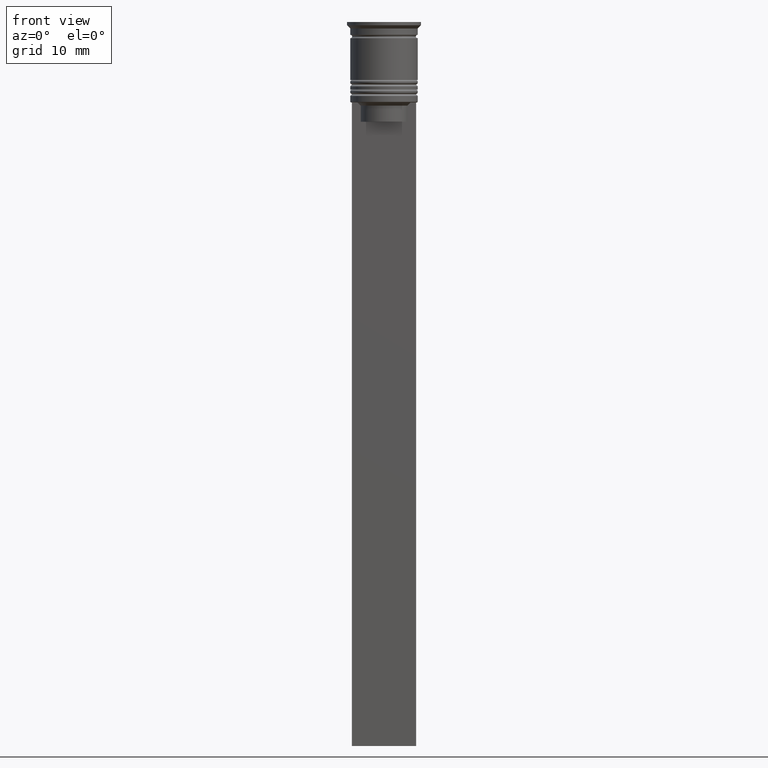
[diagram: clean part render]
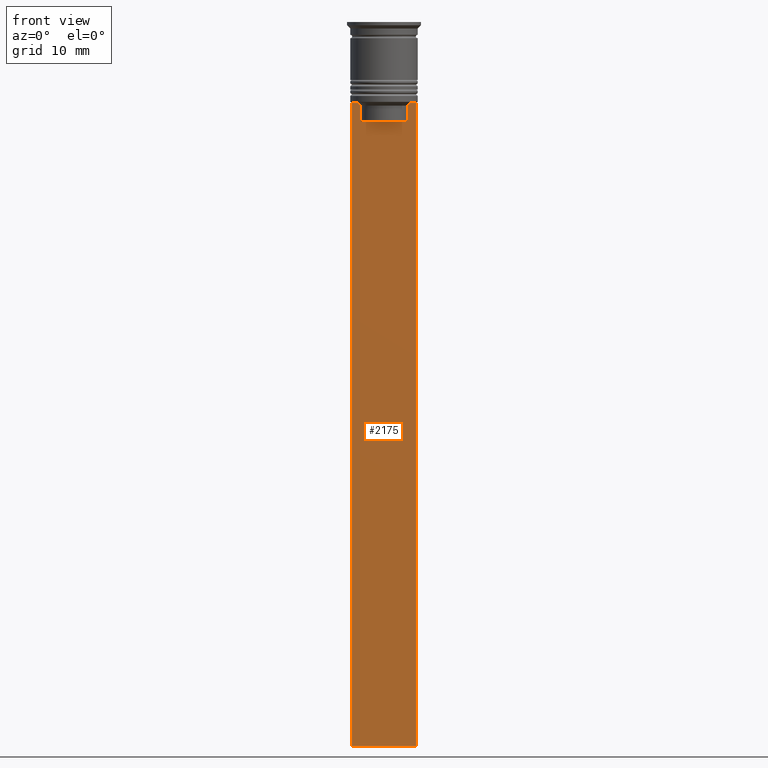
[diagram: same view with one face highlighted and labeled with its STEP entity id]
A machine part, front view. The second image highlights one B-rep face of the part: STEP entity #2175.
In plain terms, the highlighted planar face has unit normal (0, -1, -0).
Its self-contained STEP definition (entity closure, byte-faithful):
#6 = EDGE_LOOP ( 'NONE', ( #1225, #644, #2257, #1874, #1828, #2062, #1421, #1634, #1749, #2031 ) ) ;
#29 = VECTOR ( 'NONE', #1415, 1000.000000000000000 ) ;
#33 = VECTOR ( 'NONE', #55, 1000.000000000000000 ) ;
#55 = DIRECTION ( 'NONE',  ( 0.000000000000000000, 0.000000000000000000, -1.000000000000000000 ) ) ;
#79 = CARTESIAN_POINT ( 'NONE',  ( 3.783746406711540278, -0.5000000000000008882, -12.83343003979123509 ) ) ;
#122 = PLANE ( 'NONE',  #1200 ) ;
#128 = DIRECTION ( 'NONE',  ( 1.000000000000000000, 0.000000000000000000, 0.000000000000000000 ) ) ;
#150 = DIRECTION ( 'NONE',  ( 1.000000000000000000, 0.000000000000000000, 0.000000000000000000 ) ) ;
#157 = EDGE_CURVE ( 'NONE', #1609, #1495, #1707, .T. ) ;
#159 = DIRECTION ( 'NONE',  ( 0.000000000000000000, 0.000000000000000000, -1.000000000000000000 ) ) ;
#193 = CARTESIAN_POINT ( 'NONE',  ( 5.000000000000000000, -0.5000000000000008882, -2.450124378879110054 ) ) ;
#261 = LINE ( 'NONE', #1837, #332 ) ;
#266 = VECTOR ( 'NONE', #150, 1000.000000000000000 ) ;
#292 = CARTESIAN_POINT ( 'NONE',  ( 0.000000000000000000, -0.5000000000000008882, -15.50000000000000000 ) ) ;
#304 = CARTESIAN_POINT ( 'NONE',  ( 5.000000000000000000, -0.5000000000000008882, -112.5000000000000000 ) ) ;
#306 = CARTESIAN_POINT ( 'NONE',  ( 5.000000000000000000, -0.5000000000000008882, -12.50000000000000000 ) ) ;
#327 = DIRECTION ( 'NONE',  ( 0.000000000000000000, 0.000000000000000000, -1.000000000000000000 ) ) ;
#332 = VECTOR ( 'NONE', #1496, 1000.000000000000000 ) ;
#348 = CARTESIAN_POINT ( 'NONE',  ( 4.119769411022908834, -0.5000000000000008882, -12.50000000000000000 ) ) ;
#388 = EDGE_CURVE ( 'NONE', #1000, #1836, #1380, .T. ) ;
#420 = VERTEX_POINT ( 'NONE', #304 ) ;
#458 = CARTESIAN_POINT ( 'NONE',  ( -4.999999999999999112, -0.5000000000000008882, -112.5000000000000000 ) ) ;
#481 = LINE ( 'NONE', #508, #818 ) ;
#508 = CARTESIAN_POINT ( 'NONE',  ( -3.615591237958188042, -0.5000000000000008882, 0.000000000000000000 ) ) ;
#512 = CARTESIAN_POINT ( 'NONE',  ( 5.000000000000000000, -0.5000000000000008882, -2.450124378879110054 ) ) ;
#530 = CARTESIAN_POINT ( 'NONE',  ( 3.615591237958188042, -0.5000000000000008882, -13.00000000000000178 ) ) ;
#588 = CARTESIAN_POINT ( 'NONE',  ( -4.999999999999999112, -0.5000000000000008882, -12.50000000000000000 ) ) ;
#644 = ORIENTED_EDGE ( 'NONE', *, *, #1207, .F. ) ;
#738 = CARTESIAN_POINT ( 'NONE',  ( -4.119769411022908834, -0.5000000000000008882, -12.50000000000000000 ) ) ;
#791 = CARTESIAN_POINT ( 'NONE',  ( 3.951794168112528816, -0.5000000000000008882, -12.66675163073525745 ) ) ;
#810 = EDGE_CURVE ( 'NONE', #1833, #1513, #1747, .T. ) ;
#818 = VECTOR ( 'NONE', #327, 1000.000000000000000 ) ;
#841 = LINE ( 'NONE', #306, #854 ) ;
#844 = DIRECTION ( 'NONE',  ( 0.000000000000000000, 0.000000000000000000, -1.000000000000000000 ) ) ;
#854 = VECTOR ( 'NONE', #128, 1000.000000000000000 ) ;
#881 = CARTESIAN_POINT ( 'NONE',  ( -3.615591237958188486, -0.5000000000000008882, -15.50000000000000000 ) ) ;
#947 = CARTESIAN_POINT ( 'NONE',  ( 3.615591237958188042, -0.5000000000000008882, -13.00000000000000178 ) ) ;
#990 = EDGE_CURVE ( 'NONE', #2160, #1956, #1137, .T. ) ;
#1000 = VERTEX_POINT ( 'NONE', #881 ) ;
#1058 = CARTESIAN_POINT ( 'NONE',  ( -3.615591237958188042, -0.5000000000000008882, -13.00000000000000178 ) ) ;
#1074 = EDGE_CURVE ( 'NONE', #1836, #1702, #261, .T. ) ;
#1094 = EDGE_CURVE ( 'NONE', #1702, #1609, #1451, .T. ) ;
#1137 = B_SPLINE_CURVE_WITH_KNOTS ( 'NONE', 3,
 ( #738, #1475, #1774, #1058 ),
 .UNSPECIFIED., .F., .F.,
 ( 4, 4 ),
 ( 0.007067514914986629433, 0.007777582239375527978 ),
 .UNSPECIFIED. ) ;
#1149 = CARTESIAN_POINT ( 'NONE',  ( 4.119769411022908834, -0.5000000000000008882, -12.50000000000000000 ) ) ;
#1157 = CARTESIAN_POINT ( 'NONE',  ( 5.000000000000000000, -0.5000000000000008882, -12.50000000000000000 ) ) ;
#1200 = AXIS2_PLACEMENT_3D ( 'NONE', #512, #1775, #159 ) ;
#1202 = EDGE_CURVE ( 'NONE', #1956, #1000, #481, .T. ) ;
#1207 = EDGE_CURVE ( 'NONE', #1833, #2160, #841, .T. ) ;
#1225 = ORIENTED_EDGE ( 'NONE', *, *, #990, .F. ) ;
#1227 = CARTESIAN_POINT ( 'NONE',  ( -4.999999999999999112, -0.5000000000000008882, -2.450124378879110054 ) ) ;
#1237 = EDGE_CURVE ( 'NONE', #420, #1513, #1422, .T. ) ;
#1248 = CARTESIAN_POINT ( 'NONE',  ( 5.000000000000000000, -0.5000000000000008882, -112.5000000000000000 ) ) ;
#1368 = CARTESIAN_POINT ( 'NONE',  ( -3.615591237958188042, -0.5000000000000008882, -13.00000000000000178 ) ) ;
#1377 = CARTESIAN_POINT ( 'NONE',  ( -4.119769411022908834, -0.5000000000000008882, -12.50000000000000000 ) ) ;
#1380 = LINE ( 'NONE', #292, #266 ) ;
#1415 = DIRECTION ( 'NONE',  ( -1.000000000000000000, 0.000000000000000000, 0.000000000000000000 ) ) ;
#1421 = ORIENTED_EDGE ( 'NONE', *, *, #1094, .F. ) ;
#1422 = LINE ( 'NONE', #1248, #29 ) ;
#1451 = B_SPLINE_CURVE_WITH_KNOTS ( 'NONE', 3,
 ( #947, #79, #791, #1149 ),
 .UNSPECIFIED., .F., .F.,
 ( 4, 4 ),
 ( 0.01745179617248909451, 0.01816207215777257411 ),
 .UNSPECIFIED. ) ;
#1459 = EDGE_CURVE ( 'NONE', #1495, #420, #1808, .T. ) ;
#1475 = CARTESIAN_POINT ( 'NONE',  ( -3.951794205566887985, -0.5000000000000008882, -12.66675159355373914 ) ) ;
#1495 = VERTEX_POINT ( 'NONE', #1157 ) ;
#1496 = DIRECTION ( 'NONE',  ( -0.000000000000000000, -0.000000000000000000, 1.000000000000000000 ) ) ;
#1513 = VERTEX_POINT ( 'NONE', #458 ) ;
#1548 = DIRECTION ( 'NONE',  ( 1.000000000000000000, 0.000000000000000000, 0.000000000000000000 ) ) ;
#1609 = VERTEX_POINT ( 'NONE', #348 ) ;
#1634 = ORIENTED_EDGE ( 'NONE', *, *, #1074, .F. ) ;
#1702 = VERTEX_POINT ( 'NONE', #530 ) ;
#1707 = LINE ( 'NONE', #1861, #2254 ) ;
#1739 = FACE_OUTER_BOUND ( 'NONE', #6, .T. ) ;
#1747 = LINE ( 'NONE', #1227, #1887 ) ;
#1749 = ORIENTED_EDGE ( 'NONE', *, *, #388, .F. ) ;
#1774 = CARTESIAN_POINT ( 'NONE',  ( -3.783746449387932476, -0.5000000000000008882, -12.83342999751715752 ) ) ;
#1775 = DIRECTION ( 'NONE',  ( 0.000000000000000000, -1.000000000000000000, -0.000000000000000000 ) ) ;
#1808 = LINE ( 'NONE', #193, #33 ) ;
#1828 = ORIENTED_EDGE ( 'NONE', *, *, #1459, .F. ) ;
#1833 = VERTEX_POINT ( 'NONE', #588 ) ;
#1836 = VERTEX_POINT ( 'NONE', #2033 ) ;
#1837 = CARTESIAN_POINT ( 'NONE',  ( 3.615591237958188042, -0.5000000000000008882, 0.000000000000000000 ) ) ;
#1861 = CARTESIAN_POINT ( 'NONE',  ( 5.000000000000000000, -0.5000000000000008882, -12.50000000000000000 ) ) ;
#1874 = ORIENTED_EDGE ( 'NONE', *, *, #1237, .F. ) ;
#1887 = VECTOR ( 'NONE', #844, 1000.000000000000000 ) ;
#1956 = VERTEX_POINT ( 'NONE', #1368 ) ;
#2031 = ORIENTED_EDGE ( 'NONE', *, *, #1202, .F. ) ;
#2033 = CARTESIAN_POINT ( 'NONE',  ( 3.615591237958188486, -0.5000000000000008882, -15.50000000000000000 ) ) ;
#2062 = ORIENTED_EDGE ( 'NONE', *, *, #157, .F. ) ;
#2160 = VERTEX_POINT ( 'NONE', #1377 ) ;
#2175 = ADVANCED_FACE ( 'NONE', ( #1739 ), #122, .T. ) ;
#2254 = VECTOR ( 'NONE', #1548, 1000.000000000000000 ) ;
#2257 = ORIENTED_EDGE ( 'NONE', *, *, #810, .T. ) ;